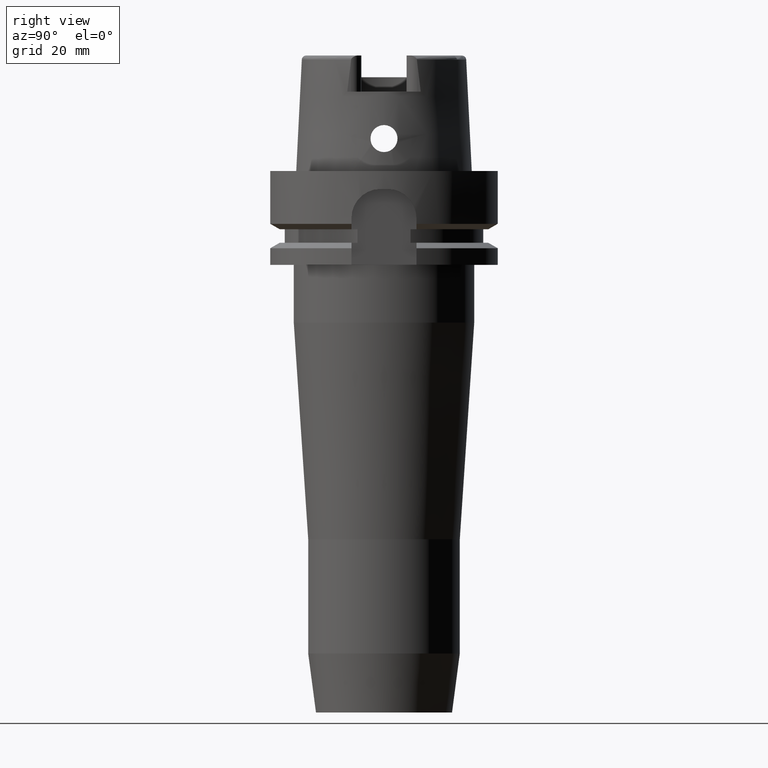
[diagram: clean part render]
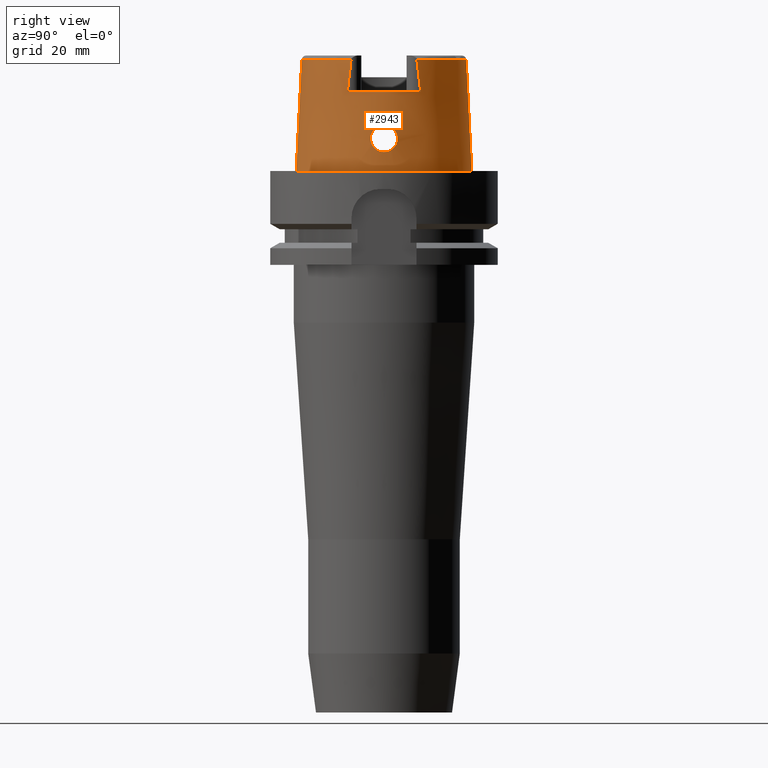
[diagram: same view with one face highlighted and labeled with its STEP entity id]
A machine part, right view. The second image highlights one B-rep face of the part: STEP entity #2943.
In plain terms, the highlighted conical surface has half-angle 2.862 deg.
Its self-contained STEP definition (entity closure, byte-faithful):
#180=DIRECTION('',(8.032179027582E-5,-4.993928193351E-2,-9.987522523971E-1));
#181=VECTOR('',#180,3.089848062794E1);
#182=CARTESIAN_POINT('',(-2.481821280836E-3,-2.277198688789E1,
3.085992712280E1));
#183=LINE('',#182,#181);
#274=CARTESIAN_POINT('',(2.086974110890E1,-9.111383545307E0,3.085992739891E1));
#279=CARTESIAN_POINT('',(0.E0,0.E0,3.085992712280E1));
#280=DIRECTION('',(0.E0,0.E0,-1.E0));
#281=DIRECTION('',(9.164655183266E-1,-4.001136759952E-1,0.E0));
#282=AXIS2_PLACEMENT_3D('',#279,#280,#281);
#367=CARTESIAN_POINT('',(0.E0,0.E0,2.2E1));
#368=DIRECTION('',(0.E0,0.E0,-1.E0));
#369=DIRECTION('',(8.989877876695E-1,4.379736951247E-1,0.E0));
#370=AXIS2_PLACEMENT_3D('',#367,#368,#369);
#491=CARTESIAN_POINT('',(0.E0,0.E0,3.085992712280E1));
#492=DIRECTION('',(0.E0,0.E0,-1.E0));
#493=DIRECTION('',(0.E0,1.E0,0.E0));
#494=AXIS2_PLACEMENT_3D('',#491,#492,#493);
#517=CARTESIAN_POINT('',(2.086999606042E1,1.016757672286E1,2.2E1));
#518=CARTESIAN_POINT('',(2.086999606042E1,1.005830459083E1,2.295713692900E1));
#519=CARTESIAN_POINT('',(2.087000073898E1,9.837693731168E0,2.486635586676E1));
#520=CARTESIAN_POINT('',(2.087000332294E1,9.498302441447E0,2.771500404696E1));
#521=CARTESIAN_POINT('',(2.086999175382E1,9.267368850798E0,2.960362234661E1));
#522=CARTESIAN_POINT('',(2.086999175382E1,9.150018522240E0,3.054599590786E1));
#527=CARTESIAN_POINT('',(2.086999175382E1,9.150018522240E0,3.054599590786E1));
#528=CARTESIAN_POINT('',(2.086999175382E1,9.145671884311E0,3.058090127809E1));
#529=CARTESIAN_POINT('',(2.086998416656E1,9.136990373404E0,3.065018241663E1));
#530=CARTESIAN_POINT('',(2.086989220690E1,9.124128538918E0,3.075517018290E1));
#531=CARTESIAN_POINT('',(2.086979784207E1,9.115619992634E0,3.082498881153E1));
#532=CARTESIAN_POINT('',(2.086974104059E1,9.111384043401E0,3.085992601097E1));
#537=DIRECTION('',(-8.032179027593E-5,4.993928193351E-2,-9.987522523971E-1));
#538=VECTOR('',#537,3.089848062794E1);
#539=CARTESIAN_POINT('',(2.481821280840E-3,2.277198688789E1,3.085992712280E1));
#540=LINE('',#539,#538);
#544=CARTESIAN_POINT('',(2.086974110890E1,-9.111383545307E0,3.085992739891E1));
#545=CARTESIAN_POINT('',(2.086979791523E1,-9.115619747534E0,3.082498808786E1));
#546=CARTESIAN_POINT('',(2.086989359503E1,-9.124126100557E0,3.075510751685E1));
#547=CARTESIAN_POINT('',(2.086997922485E1,-9.137002228651E0,3.065040319054E1));
#548=CARTESIAN_POINT('',(2.087000236792E1,-9.145647815676E0,3.058042815478E1));
#549=CARTESIAN_POINT('',(2.087000236792E1,-9.149994681381E0,3.054552122895E1));
#554=CARTESIAN_POINT('',(2.087000236792E1,-9.149994681381E0,3.054552122895E1));
#555=CARTESIAN_POINT('',(2.087000236792E1,-9.267237586258E0,2.960401770380E1));
#556=CARTESIAN_POINT('',(2.087000130158E1,-9.498473773453E0,2.771533041693E1));
#557=CARTESIAN_POINT('',(2.086999189259E1,-9.837864426117E0,2.486682029449E1));
#558=CARTESIAN_POINT('',(2.087001804958E1,-1.005818307170E1,2.295730285027E1));
#559=CARTESIAN_POINT('',(2.087001804958E1,-1.016747560172E1,2.2E1));
#564=CARTESIAN_POINT('',(2.367751368058E1,0.E0,1.275E1));
#565=CARTESIAN_POINT('',(2.367751368058E1,-3.573750892276E-1,1.275E1));
#566=CARTESIAN_POINT('',(2.366602661328E1,-1.072480470838E0,1.264701812658E1));
#567=CARTESIAN_POINT('',(2.362156617659E1,-2.058400404760E0,1.219633609900E1));
#568=CARTESIAN_POINT('',(2.356917741263E1,-2.879133370746E0,1.148246034677E1));
#569=CARTESIAN_POINT('',(2.353465313627E1,-3.460299468910E0,1.057248995301E1));
#570=CARTESIAN_POINT('',(2.353933107364E1,-3.762049578497E0,9.540048673058E0));
#571=CARTESIAN_POINT('',(2.359357380852E1,-3.762854586792E0,8.466825258654E0));
#572=CARTESIAN_POINT('',(2.369280279451E1,-3.463794247878E0,7.434551172416E0));
#573=CARTESIAN_POINT('',(2.381915270499E1,-2.880545210358E0,6.518206087924E0));
#574=CARTESIAN_POINT('',(2.394281602525E1,-2.055622413007E0,5.801336085520E0));
#575=CARTESIAN_POINT('',(2.403140486443E1,-1.065773042871E0,5.351066768983E0));
#576=CARTESIAN_POINT('',(2.405252611747E1,-3.543520545894E-1,5.25E0));
#577=CARTESIAN_POINT('',(2.405252611747E1,0.E0,5.25E0));
#582=CARTESIAN_POINT('',(2.405252611747E1,0.E0,5.25E0));
#583=CARTESIAN_POINT('',(2.405252611747E1,3.539388083922E-1,5.25E0));
#584=CARTESIAN_POINT('',(2.403138314055E1,1.062742172268E0,5.351240040662E0));
#585=CARTESIAN_POINT('',(2.394445349424E1,2.040088640092E0,5.792918795612E0));
#586=CARTESIAN_POINT('',(2.382211050449E1,2.864325034476E0,6.499618269899E0));
#587=CARTESIAN_POINT('',(2.369483932988E1,3.456604325712E0,7.416308849852E0));
#588=CARTESIAN_POINT('',(2.359383882169E1,3.763238276441E0,8.460463559970E0));
#589=CARTESIAN_POINT('',(2.353912852789E1,3.762052968905E0,9.544123637686E0));
#590=CARTESIAN_POINT('',(2.353478993067E1,3.457796473264E0,1.057717548023E1));
#591=CARTESIAN_POINT('',(2.356916741657E1,2.879303421212E0,1.148125246033E1));
#592=CARTESIAN_POINT('',(2.362130496122E1,2.062872337162E0,1.219341130049E1));
#593=CARTESIAN_POINT('',(2.366596789500E1,1.075165795176E0,1.264654607911E1));
#594=CARTESIAN_POINT('',(2.367751368058E1,3.584897738616E-1,1.275E1));
#595=CARTESIAN_POINT('',(2.367751368058E1,0.E0,1.275E1));
#630=CARTESIAN_POINT('',(0.E0,0.E0,-7.389644451905E-13));
#631=DIRECTION('',(0.E0,0.E0,1.E0));
#632=DIRECTION('',(0.E0,-1.E0,0.E0));
#633=AXIS2_PLACEMENT_3D('',#630,#631,#632);
#2327=CARTESIAN_POINT('',(0.E0,-2.277198729362E1,3.085992712280E1));
#2328=VERTEX_POINT('',#2327);
#2329=CARTESIAN_POINT('',(0.E0,-2.431503482329E1,-3.410605131648E-13));
#2330=VERTEX_POINT('',#2329);
#2331=CARTESIAN_POINT('',(0.E0,2.431503482329E1,-7.389644451905E-13));
#2332=VERTEX_POINT('',#2331);
#2333=CARTESIAN_POINT('',(2.481821280840E-3,2.277198688789E1,3.085992712280E1));
#2334=VERTEX_POINT('',#2333);
#2337=CARTESIAN_POINT('',(2.086974092012E1,9.111384045666E0,3.085992712280E1));
#2338=VERTEX_POINT('',#2337);
#2339=VERTEX_POINT('',#274);
#2340=CARTESIAN_POINT('',(2.087E1,1.016755860605E1,2.2E1));
#2341=CARTESIAN_POINT('',(2.087E1,-1.016755860605E1,2.2E1));
#2342=VERTEX_POINT('',#2340);
#2343=VERTEX_POINT('',#2341);
#2344=VERTEX_POINT('',#522);
#2345=VERTEX_POINT('',#549);
#2346=VERTEX_POINT('',#564);
#2347=VERTEX_POINT('',#577);
#2916=CARTESIAN_POINT('',(0.E0,0.E0,1.542996356140E1));
#2917=DIRECTION('',(0.E0,0.E0,-1.E0));
#2918=DIRECTION('',(0.E0,-1.E0,0.E0));
#2919=AXIS2_PLACEMENT_3D('',#2916,#2917,#2918);
#2920=CONICAL_SURFACE('',#2919,2.354351105845E1,2.8625E0);
#2921=ORIENTED_EDGE('',*,*,#2830,.F.);
#2923=ORIENTED_EDGE('',*,*,#2922,.T.);
#2925=ORIENTED_EDGE('',*,*,#2924,.T.);
#2926=ORIENTED_EDGE('',*,*,#2908,.F.);
#2927=ORIENTED_EDGE('',*,*,#2723,.T.);
#2929=ORIENTED_EDGE('',*,*,#2928,.F.);
#2930=ORIENTED_EDGE('',*,*,#2719,.F.);
#2931=ORIENTED_EDGE('',*,*,#2760,.F.);
#2932=ORIENTED_EDGE('',*,*,#2778,.T.);
#2934=ORIENTED_EDGE('',*,*,#2933,.T.);
#2935=EDGE_LOOP('',(#2921,#2923,#2925,#2926,#2927,#2929,#2930,#2931,#2932,
#2934));
#2936=FACE_OUTER_BOUND('',#2935,.F.);
#2938=ORIENTED_EDGE('',*,*,#2937,.T.);
#2940=ORIENTED_EDGE('',*,*,#2939,.T.);
#2941=EDGE_LOOP('',(#2938,#2940));
#2942=FACE_BOUND('',#2941,.F.);
#283=CIRCLE('',#282,2.277198729362E1);
#371=CIRCLE('',#370,2.321499834175E1);
#495=CIRCLE('',#494,2.277198729362E1);
#523=B_SPLINE_CURVE_WITH_KNOTS('',3,(#517,#518,#519,#520,#521,#522),
.UNSPECIFIED.,.F.,.F.,(4,1,1,4),(0.E0,3.333333333333E-1,6.666666666667E-1,1.E0),
.UNSPECIFIED.);
#533=B_SPLINE_CURVE_WITH_KNOTS('',3,(#527,#528,#529,#530,#531,#532),
.UNSPECIFIED.,.F.,.F.,(4,1,1,4),(0.E0,3.333333333333E-1,6.666666666667E-1,1.E0),
.UNSPECIFIED.);
#550=B_SPLINE_CURVE_WITH_KNOTS('',3,(#544,#545,#546,#547,#548,#549),
.UNSPECIFIED.,.F.,.F.,(4,1,1,4),(0.E0,3.333333333333E-1,6.666666666667E-1,1.E0),
.UNSPECIFIED.);
#560=B_SPLINE_CURVE_WITH_KNOTS('',3,(#554,#555,#556,#557,#558,#559),
.UNSPECIFIED.,.F.,.F.,(4,1,1,4),(0.E0,3.333333333333E-1,6.666666666667E-1,1.E0),
.UNSPECIFIED.);
#578=B_SPLINE_CURVE_WITH_KNOTS('',3,(#564,#565,#566,#567,#568,#569,#570,#571,
#572,#573,#574,#575,#576,#577),.UNSPECIFIED.,.F.,.F.,(4,1,1,1,1,1,1,1,1,1,1,4),(
0.E0,9.090909090909E-2,1.818181818182E-1,2.727272727273E-1,3.636363636364E-1,
4.545454545455E-1,5.454545454545E-1,6.363636363636E-1,7.272727272727E-1,
8.181818181818E-1,9.090909090909E-1,1.E0),.UNSPECIFIED.);
#596=B_SPLINE_CURVE_WITH_KNOTS('',3,(#582,#583,#584,#585,#586,#587,#588,#589,
#590,#591,#592,#593,#594,#595),.UNSPECIFIED.,.F.,.F.,(4,1,1,1,1,1,1,1,1,1,1,4),(
0.E0,9.090909090909E-2,1.818181818182E-1,2.727272727273E-1,3.636363636364E-1,
4.545454545455E-1,5.454545454545E-1,6.363636363636E-1,7.272727272727E-1,
8.181818181818E-1,9.090909090909E-1,1.E0),.UNSPECIFIED.);
#634=CIRCLE('',#633,2.431503482329E1);
#2719=EDGE_CURVE('',#2328,#2330,#183,.T.);
#2723=EDGE_CURVE('',#2334,#2332,#540,.T.);
#2760=EDGE_CURVE('',#2339,#2328,#283,.T.);
#2778=EDGE_CURVE('',#2339,#2345,#550,.T.);
#2830=EDGE_CURVE('',#2342,#2343,#371,.T.);
#2908=EDGE_CURVE('',#2334,#2338,#495,.T.);
#2922=EDGE_CURVE('',#2342,#2344,#523,.T.);
#2924=EDGE_CURVE('',#2344,#2338,#533,.T.);
#2928=EDGE_CURVE('',#2330,#2332,#634,.T.);
#2933=EDGE_CURVE('',#2345,#2343,#560,.T.);
#2937=EDGE_CURVE('',#2346,#2347,#578,.T.);
#2939=EDGE_CURVE('',#2347,#2346,#596,.T.);
#2943=ADVANCED_FACE('',(#2936,#2942),#2920,.T.);